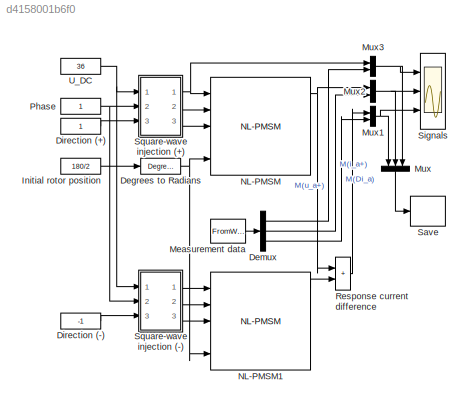
MODEL slx_d4158001b6f0
KIND model
CONFIG AbsTol = auto
CONFIG EnableMultiTasking = off
CONFIG FixedStep = auto
CONFIG InitFcn = % Loading the measurement data\nload('MeasurementData.mat', 'PM')
CONFIG MaxStep = 5e-8
CONFIG MinStep = auto
CONFIG RelTol = 1e-5
CONFIG SampleTimeConstraint = Unconstrained
CONFIG SolverName = VariableStepAuto
CONFIG StartTime = 0.0
CONFIG StopTime = 500e-6
BLOCK [Reference] Degrees to Radians  REF=simulink_extras/Transformations/Degrees to
Radians
  Ports = [1, 1]
  SourceBlock = simulink_extras/Transformations/Degrees to\nRadians
  SourceProductBaseCode = SL
  SourceType = DegreesToRadians
BLOCK [Demux] Demux
  Outputs = 3
  Ports = [1, 3]
BLOCK [Constant] Direction (+)
BLOCK [Constant] Direction (-)
  Value = -1
BLOCK [Constant] Initial rotor position
  Value = 180/2
BLOCK [FromWorkspace] Measurement data
  Interpolate = off
  OutputAfterFinalValue = Setting to zero
  SampleTime = -1
  VariableName = PM
BLOCK [Mux] Mux
  DisplayOption = bar
  Inputs = 3
  NameLocation = left
  Ports = [3, 1]
BLOCK [Mux] Mux1
  DisplayOption = bar
  Inputs = 2
  Ports = [2, 1]
BLOCK [Mux] Mux2
  DisplayOption = bar
  Inputs = 2
  Ports = [2, 1]
BLOCK [Mux] Mux3
  DisplayOption = bar
  Inputs = 2
  Ports = [2, 1]
BLOCK [Reference] NL-PMSM  REF=SLNS/Electric machines/NL-PMSM
  Ports = [5, 5]
  SourceBlock = SLNS/Electric machines/NL-PMSM
  SourceType = Permanent magnet synchronous motor
BLOCK [Reference] NL-PMSM1  REF=SLNS/Electric machines/NL-PMSM
  Ports = [5, 5]
  SourceBlock = SLNS/Electric machines/NL-PMSM
  SourceType = Permanent magnet synchronous motor
BLOCK [Constant] Phase
  NameLocation = top
BLOCK [Sum] Response current difference
  IconShape = rectangular
  Ports = [2, 1]
BLOCK [ToWorkspace] Save
  FixptAsFi = on
  MaxDataPoints = inf
  Ports = [1]
  SampleTime = 1/240000
  VariableName = PO
BLOCK [Scope] Signals
  Floating = off
  NumInputPorts = 3
  Ports = [3]
  ScopeSpecificationString = Simulink.scopes.TimeScopeBlockCfg('CurrentConfiguration', extmgr.ConfigurationSet(extmgr.Configuration('Core','General UI',true),extmgr.Configuration('Core','Source UI',true),extmgr.Configuration('Sources','WiredSimulink',true,'DataLoggingVariableName','ScopeData2'),extmgr.Configuration('Visuals','Time Domain',true,'SerializedDisplays',{struct('MinYLimReal','-30.89684','MaxYLimReal','38.42127','YL...<+2868ch>
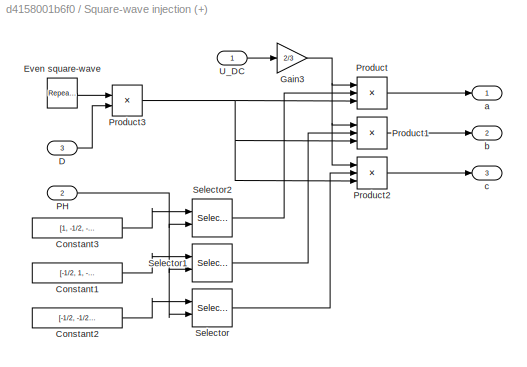
BLOCK [SubSystem] Square-wave injection (+)
  NameLocation = top
  Ports = [3, 3]
  RequestExecContextInheritance = off
BLOCK [Constant] Square-wave injection (+)/Constant1
  Value = [-1/2, 1, -1/2]
BLOCK [Constant] Square-wave injection (+)/Constant2
  Value = [-1/2, -1/2, 1]
BLOCK [Constant] Square-wave injection (+)/Constant3
  Value = [1, -1/2, -1/2]
BLOCK [Inport] Square-wave injection (+)/D
  Port = 3
BLOCK [Reference] Square-wave injection (+)/Even square-wave  REF=simulink/Sources/Repeating
Sequence
  Ports = [0, 1]
  SourceBlock = simulink/Sources/Repeating\nSequence
  SourceProductBaseCode = SL
  SourceType = Repeating table
BLOCK [Gain] Square-wave injection (+)/Gain3
  Gain = 2/3
BLOCK [Inport] Square-wave injection (+)/PH
  Port = 2
BLOCK [Product] Square-wave injection (+)/Product
  Inputs = 3
  Ports = [3, 1]
BLOCK [Product] Square-wave injection (+)/Product1
  Inputs = 3
  Ports = [3, 1]
BLOCK [Product] Square-wave injection (+)/Product2
  Inputs = 3
  Ports = [3, 1]
BLOCK [Product] Square-wave injection (+)/Product3
  Ports = [2, 1]
BLOCK [Selector] Square-wave injection (+)/Selector
  IndexOptions = Index vector (port)
  Indices = [1 3]
  InputPortWidth = 3
  OutputSizes = 1
  Ports = [2, 1]
BLOCK [Selector] Square-wave injection (+)/Selector1
  IndexOptions = Index vector (port)
  Indices = [1 3]
  InputPortWidth = 3
  OutputSizes = 1
  Ports = [2, 1]
BLOCK [Selector] Square-wave injection (+)/Selector2
  IndexOptions = Index vector (port)
  Indices = [1 3]
  InputPortWidth = 3
  OutputSizes = 1
  Ports = [2, 1]
BLOCK [Inport] Square-wave injection (+)/U_DC
BLOCK [Outport] Square-wave injection (+)/a
BLOCK [Outport] Square-wave injection (+)/b
  Port = 2
BLOCK [Outport] Square-wave injection (+)/c
  Port = 3
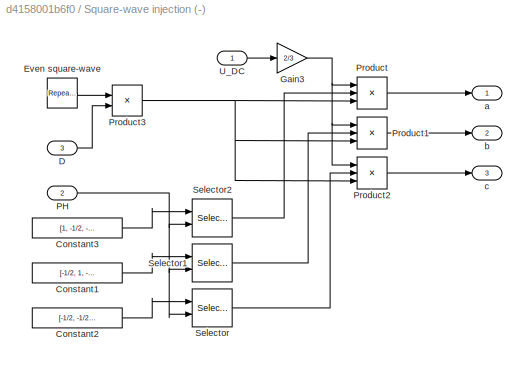
BLOCK [SubSystem] Square-wave injection (-)
  Ports = [3, 3]
  RequestExecContextInheritance = off
BLOCK [Constant] Square-wave injection (-)/Constant1
  Value = [-1/2, 1, -1/2]
BLOCK [Constant] Square-wave injection (-)/Constant2
  Value = [-1/2, -1/2, 1]
BLOCK [Constant] Square-wave injection (-)/Constant3
  Value = [1, -1/2, -1/2]
BLOCK [Inport] Square-wave injection (-)/D
  Port = 3
BLOCK [Reference] Square-wave injection (-)/Even square-wave  REF=simulink/Sources/Repeating
Sequence
  Ports = [0, 1]
  SourceBlock = simulink/Sources/Repeating\nSequence
  SourceProductBaseCode = SL
  SourceType = Repeating table
BLOCK [Gain] Square-wave injection (-)/Gain3
  Gain = 2/3
BLOCK [Inport] Square-wave injection (-)/PH
  Port = 2
BLOCK [Product] Square-wave injection (-)/Product
  Inputs = 3
  Ports = [3, 1]
BLOCK [Product] Square-wave injection (-)/Product1
  Inputs = 3
  Ports = [3, 1]
BLOCK [Product] Square-wave injection (-)/Product2
  Inputs = 3
  Ports = [3, 1]
BLOCK [Product] Square-wave injection (-)/Product3
  Ports = [2, 1]
BLOCK [Selector] Square-wave injection (-)/Selector
  IndexOptions = Index vector (port)
  Indices = [1 3]
  InputPortWidth = 3
  OutputSizes = 1
  Ports = [2, 1]
BLOCK [Selector] Square-wave injection (-)/Selector1
  IndexOptions = Index vector (port)
  Indices = [1 3]
  InputPortWidth = 3
  OutputSizes = 1
  Ports = [2, 1]
BLOCK [Selector] Square-wave injection (-)/Selector2
  IndexOptions = Index vector (port)
  Indices = [1 3]
  InputPortWidth = 3
  OutputSizes = 1
  Ports = [2, 1]
BLOCK [Inport] Square-wave injection (-)/U_DC
BLOCK [Outport] Square-wave injection (-)/a
BLOCK [Outport] Square-wave injection (-)/b
  Port = 2
BLOCK [Outport] Square-wave injection (-)/c
  Port = 3
BLOCK [Constant] U_DC
  NameLocation = top
  Value = 36
NET Degrees to Radians:1 -> NL-PMSM1:5, NL-PMSM:5
LINE Demux:1 -> Mux3:2
LINE Demux:2 -> Mux2:2
LINE Demux:3 -> Mux1:2
LINE Direction (+):1 -> Square-wave injection (+):3
LINE Direction (-):1 -> Square-wave injection (-):3
LINE Initial rotor position:1 -> Degrees to Radians:1
LINE Measurement data:1 -> Demux:1
NET Mux1:1 -> Mux:1, Signals:3
NET Mux2:1 -> Mux:2, Signals:2
NET Mux3:1 -> Mux:3, Signals:1
LINE Mux:1 -> Save:1
LINE NL-PMSM1:1 -> Response current difference:2
NET NL-PMSM:1 -> Mux2:1, Response current difference:1
NET Phase:1 -> Square-wave injection (+):2, Square-wave injection (-):2
LINE Response current difference:1 -> Mux1:1
LINE Square-wave injection (+)/Constant1:1 -> Square-wave injection (+)/Selector1:1
LINE Square-wave injection (+)/Constant2:1 -> Square-wave injection (+)/Selector:1
LINE Square-wave injection (+)/Constant3:1 -> Square-wave injection (+)/Selector2:1
LINE Square-wave injection (+)/D:1 -> Square-wave injection (+)/Product3:2
LINE Square-wave injection (+)/Even square-wave:1 -> Square-wave injection (+)/Product3:1
NET Square-wave injection (+)/Gain3:1 -> Square-wave injection (+)/Product1:1, Square-wave injection (+)/Product2:1, Square-wave injection (+)/Product:1
NET Square-wave injection (+)/PH:1 -> Square-wave injection (+)/Selector1:2, Square-wave injection (+)/Selector2:2, Square-wave injection (+)/Selector:2
LINE Square-wave injection (+)/Product1:1 -> Square-wave injection (+)/b:1
LINE Square-wave injection (+)/Product2:1 -> Square-wave injection (+)/c:1
NET Square-wave injection (+)/Product3:1 -> Square-wave injection (+)/Product1:3, Square-wave injection (+)/Product2:3, Square-wave injection (+)/Product:3
LINE Square-wave injection (+)/Product:1 -> Square-wave injection (+)/a:1
LINE Square-wave injection (+)/Selector1:1 -> Square-wave injection (+)/Product1:2
LINE Square-wave injection (+)/Selector2:1 -> Square-wave injection (+)/Product:2
LINE Square-wave injection (+)/Selector:1 -> Square-wave injection (+)/Product2:2
LINE Square-wave injection (+)/U_DC:1 -> Square-wave injection (+)/Gain3:1
NET Square-wave injection (+):1 -> Mux3:1, NL-PMSM:1
LINE Square-wave injection (+):2 -> NL-PMSM:2
LINE Square-wave injection (+):3 -> NL-PMSM:3
LINE Square-wave injection (-)/Constant1:1 -> Square-wave injection (-)/Selector1:1
LINE Square-wave injection (-)/Constant2:1 -> Square-wave injection (-)/Selector:1
LINE Square-wave injection (-)/Constant3:1 -> Square-wave injection (-)/Selector2:1
LINE Square-wave injection (-)/D:1 -> Square-wave injection (-)/Product3:2
LINE Square-wave injection (-)/Even square-wave:1 -> Square-wave injection (-)/Product3:1
NET Square-wave injection (-)/Gain3:1 -> Square-wave injection (-)/Product1:1, Square-wave injection (-)/Product2:1, Square-wave injection (-)/Product:1
NET Square-wave injection (-)/PH:1 -> Square-wave injection (-)/Selector1:2, Square-wave injection (-)/Selector2:2, Square-wave injection (-)/Selector:2
LINE Square-wave injection (-)/Product1:1 -> Square-wave injection (-)/b:1
LINE Square-wave injection (-)/Product2:1 -> Square-wave injection (-)/c:1
NET Square-wave injection (-)/Product3:1 -> Square-wave injection (-)/Product1:3, Square-wave injection (-)/Product2:3, Square-wave injection (-)/Product:3
LINE Square-wave injection (-)/Product:1 -> Square-wave injection (-)/a:1
LINE Square-wave injection (-)/Selector1:1 -> Square-wave injection (-)/Product1:2
LINE Square-wave injection (-)/Selector2:1 -> Square-wave injection (-)/Product:2
LINE Square-wave injection (-)/Selector:1 -> Square-wave injection (-)/Product2:2
LINE Square-wave injection (-)/U_DC:1 -> Square-wave injection (-)/Gain3:1
LINE Square-wave injection (-):1 -> NL-PMSM1:1
LINE Square-wave injection (-):2 -> NL-PMSM1:2
LINE Square-wave injection (-):3 -> NL-PMSM1:3
NET U_DC:1 -> Square-wave injection (+):1, Square-wave injection (-):1
note: NET lines group one-source signal fan-out (src -> all destinations, sorted); 1:1 wires keep LINE
